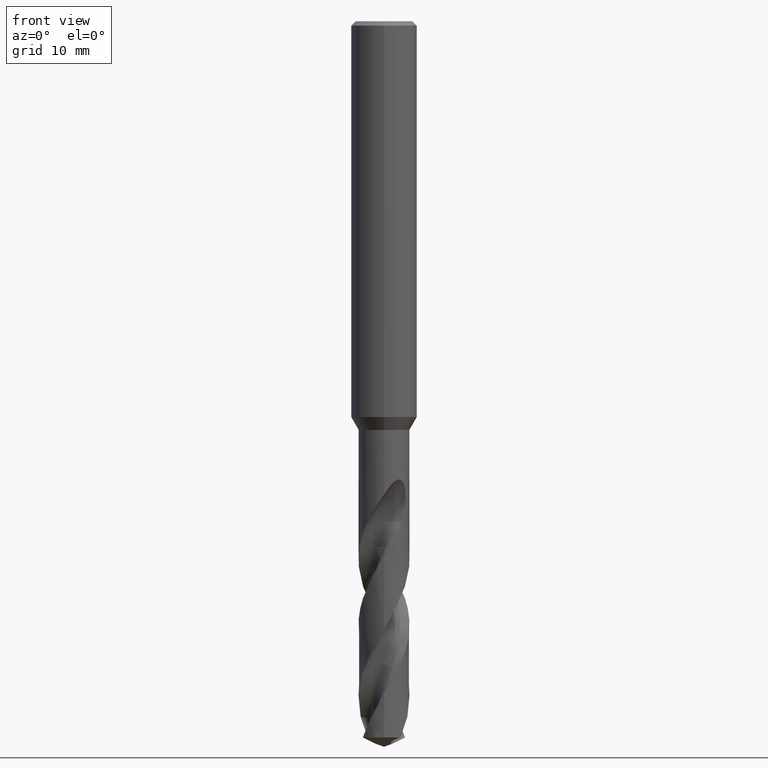
[diagram: clean part render]
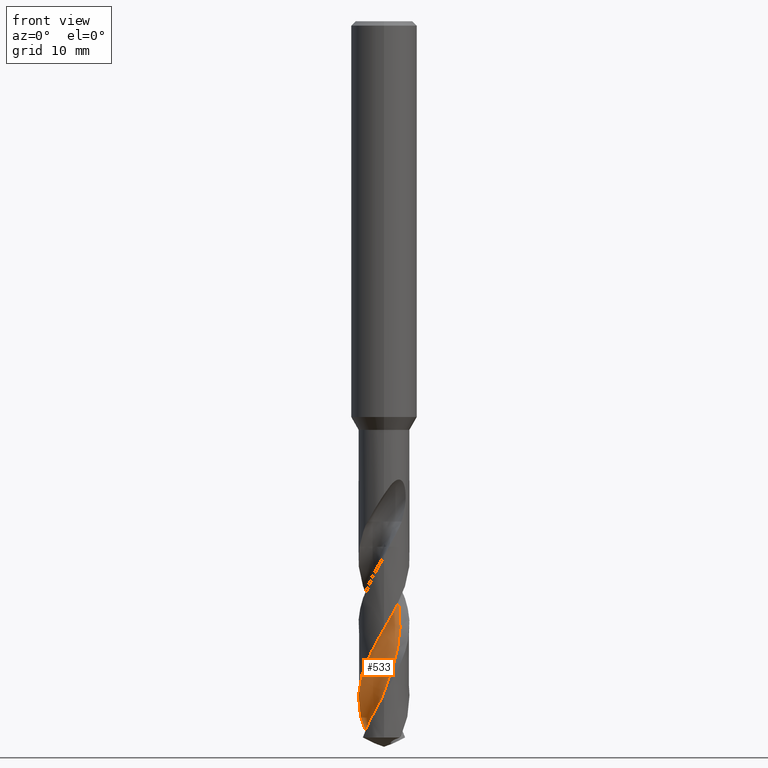
[diagram: same view with one face highlighted and labeled with its STEP entity id]
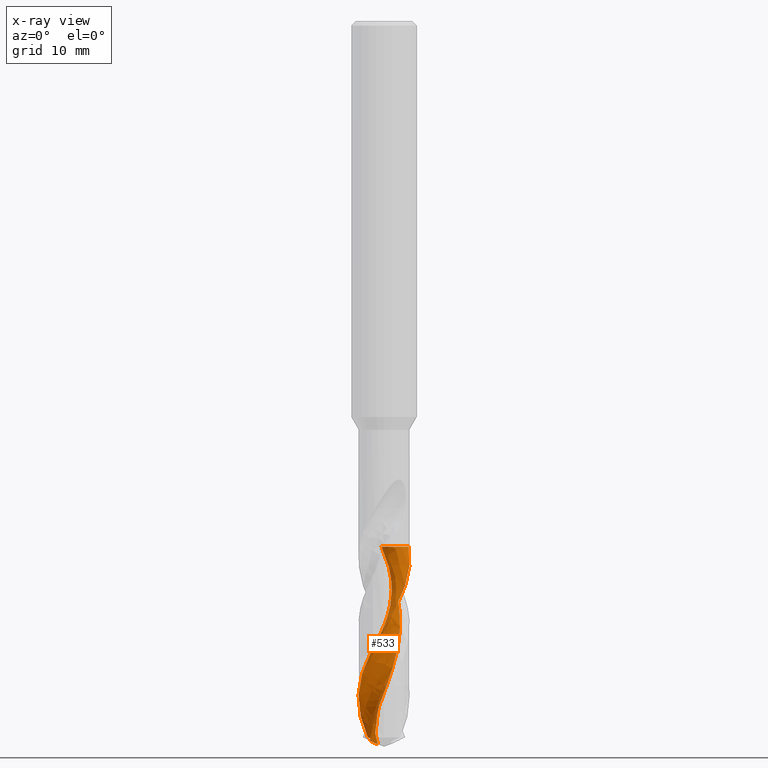
[diagram: x-ray of the same camera — body ghosted, the highlighted face saturated]
A machine part, front view. The second image highlights one B-rep face of the part: STEP entity #533.
The next image is the same camera in x-ray: the body ghosted, the highlighted face saturated — about 0% of this face is hidden behind the body in this view.
In plain terms, the highlighted face is a freeform B-spline surface patch.
Its self-contained STEP definition (entity closure, byte-faithful):
#291=EDGE_CURVE('',#693,#585,#815,.T.);
#301=EDGE_CURVE('',#605,#693,#825,.T.);
#305=EDGE_CURVE('',#585,#561,#829,.T.);
#325=EDGE_CURVE('',#561,#701,#849,.T.);
#379=EDGE_CURVE('',#701,#605,#912,.T.);
#533=ADVANCED_FACE('',(#1083),#1084,.F.);
#561=VERTEX_POINT('',#1113);
#585=VERTEX_POINT('',#1138);
#605=VERTEX_POINT('',#1158);
#693=VERTEX_POINT('',#1258);
#701=VERTEX_POINT('',#1266);
#815=B_SPLINE_CURVE_WITH_KNOTS('',3,(#1538,#1539,#1540,#1541,#1542,#1543,#1544,#1545,#1546,#1547,#1548,#1549,#1550,#1551,#1552,#1553,#1554,#1555,#1556,#1557),.UNSPECIFIED.,.F.,.F.,(4,2,2,2,2,2,2,2,2,4),(-4.88264114901719,-4.55959838827758,-4.23648554877497,-3.63066008915685,-3.02491475168122,-2.41953797536247,-1.81460369159145,-1.20992510826705,-0.605158652989508,-0.0),.UNSPECIFIED.);
#825=B_SPLINE_CURVE_WITH_KNOTS('',3,(#1577,#1578,#1579,#1580,#1581,#1582,#1583,#1584,#1585,#1586,#1587,#1588,#1589,#1590,#1591,#1592,#1593,#1594,#1595,#1596,#1597,#1598,#1599,#1600,#1601,#1602,#1603,#1604,#1605,#1606,#1607,#1608,#1609,#1610,#1611,#1612,#1613,#1614,#1615,#1616,#1617,#1618,#1619,#1620,#1621,#1622,#1623,#1624,#1625,#1626,#1627,#1628,#1629,#1630,#1631,#1632,#1633,#1634,#1635,#1636,#1637,#1638,#1639,#1640),.UNSPECIFIED.,.F.,.F.,(4,2,2,2,2,2,2,2,2,2,2,2,2,2,2,2,2,2,2,2,2,2,2,2,2,2,2,2,2,2,2,4),(0.0,0.808541596520075,1.56886892178229,2.47241410607191,3.37621867843261,3.59006172903971,4.3307048378264,4.70185289238523,5.44039208748053,6.18239420353827,6.92051241758177,7.66213026612776,8.39996494035793,9.30255510691836,9.52748558335662,10.2670687260501,10.637595799496,11.0068633195403,11.7475230777491,12.1186346197132,12.8570744648049,13.5990010648063,14.3371004621232,15.0786987394277,15.7042086871945,16.8040729961244,16.8553911488467,17.6656740598387,18.2738454392001,18.3307607534368,19.2141209936666,20.0948020953026),.UNSPECIFIED.);
#829=B_SPLINE_CURVE_WITH_KNOTS('',3,(#1645,#1646,#1647,#1648,#1649,#1650,#1651,#1652,#1653,#1654,#1655,#1656,#1657,#1658,#1659,#1660,#1661,#1662,#1663,#1664,#1665,#1666,#1667,#1668,#1669,#1670,#1671,#1672,#1673,#1674,#1675,#1676,#1677,#1678,#1679,#1680,#1681,#1682,#1683),.UNSPECIFIED.,.F.,.F.,(4,1,2,2,2,2,2,2,2,2,2,2,2,2,2,2,2,2,2,4),(0.0,0.411633637960751,0.823267275921502,1.646534551843,2.46980182776451,3.29306910368601,4.93960365552901,6.58613820737202,8.23267275921502,9.87920731105803,11.525741862901,13.172276414744,14.818810966587,16.46534551843,18.111880070273,19.7584146221161,21.4049491739591,23.0514837258021,24.6980182776451,26.3445528294881),.UNSPECIFIED.);
#849=B_SPLINE_CURVE_WITH_KNOTS('',3,(#1734,#1735,#1736,#1737,#1738,#1739,#1740,#1741,#1742,#1743,#1744,#1745,#1746,#1747,#1748,#1749,#1750,#1751,#1752,#1753),.UNSPECIFIED.,.F.,.F.,(4,2,2,2,2,2,2,2,2,4),(0.0,0.96909605989379,1.62739893184847,2.25232696858184,2.95319840639332,3.71478541063985,4.57621962632589,5.53946983386831,6.11781502484832,6.69595990678911),.UNSPECIFIED.);
#912=B_SPLINE_CURVE_WITH_KNOTS('',3,(#2452,#2453,#2454,#2455,#2456,#2457,#2458,#2459,#2460,#2461,#2462,#2463,#2464,#2465,#2466,#2467,#2468,#2469,#2470,#2471,#2472,#2473,#2474,#2475,#2476,#2477,#2478,#2479,#2480,#2481,#2482,#2483,#2484,#2485,#2486,#2487,#2488,#2489,#2490,#2491,#2492,#2493,#2494,#2495,#2496,#2497,#2498,#2499,#2500,#2501,#2502,#2503,#2504,#2505,#2506,#2507,#2508,#2509,#2510,#2511,#2512,#2513,#2514,#2515),.UNSPECIFIED.,.F.,.F.,(4,2,2,2,2,2,2,2,2,2,2,2,2,2,2,2,2,2,2,2,2,2,2,2,2,2,2,2,2,2,2,4),(0.0,0.808541596520075,1.56886892178229,2.47241410607191,3.37621867843261,3.59006172903971,4.3307048378264,4.70185289238523,5.44039208748053,6.18239420353827,6.92051241758177,7.66213026612776,8.39996494035793,9.30255510691836,9.52748558335662,10.2670687260501,10.637595799496,11.0068633195403,11.7475230777491,12.1186346197132,12.8570744648049,13.5990010648063,14.3371004621232,15.0786987394277,15.7042086871945,16.8040729961244,16.8553911488467,17.6656740598387,18.2738454392001,18.3307607534368,19.2141209936666,20.0948020953026),.UNSPECIFIED.);
#1083=FACE_OUTER_BOUND('',#4321,.T.);
#1084=B_SPLINE_SURFACE_WITH_KNOTS('',3,3,((#4322,#4323,#4324,#4325,#4326,#4327,#4328,#4329,#4330,#4331,#4332,#4333,#4334,#4335,#4336,#4337,#4338,#4339,#4340,#4341,#4342,#4343,#4344,#4345,#4346,#4347,#4348,#4349,#4350,#4351,#4352,#4353,#4354,#4355,#4356,#4357,#4358,#4359,#4360),(#4361,#4362,#4363,#4364,#4365,#4366,#4367,#4368,#4369,#4370,#4371,#4372,#4373,#4374,#4375,#4376,#4377,#4378,#4379,#4380,#4381,#4382,#4383,#4384,#4385,#4386,#4387,#4388,#4389,#4390,#4391,#4392,#4393,#4394,#4395,#4396,#4397,#4398,#4399),(#4400,#4401,#4402,#4403,#4404,#4405,#4406,#4407,#4408,#4409,#4410,#4411,#4412,#4413,#4414,#4415,#4416,#4417,#4418,#4419,#4420,#4421,#4422,#4423,#4424,#4425,#4426,#4427,#4428,#4429,#4430,#4431,#4432,#4433,#4434,#4435,#4436,#4437,#4438),(#4439,#4440,#4441,#4442,#4443,#4444,#4445,#4446,#4447,#4448,#4449,#4450,#4451,#4452,#4453,#4454,#4455,#4456,#4457,#4458,#4459,#4460,#4461,#4462,#4463,#4464,#4465,#4466,#4467,#4468,#4469,#4470,#4471,#4472,#4473,#4474,#4475,#4476,#4477),(#4478,#4479,#4480,#4481,#4482,#4483,#4484,#4485,#4486,#4487,#4488,#4489,#4490,#4491,#4492,#4493,#4494,#4495,#4496,#4497,#4498,#4499,#4500,#4501,#4502,#4503,#4504,#4505,#4506,#4507,#4508,#4509,#4510,#4511,#4512,#4513,#4514,#4515,#4516),(#4517,#4518,#4519,#4520,#4521,#4522,#4523,#4524,#4525,#4526,#4527,#4528,#4529,#4530,#4531,#4532,#4533,#4534,#4535,#4536,#4537,#4538,#4539,#4540,#4541,#4542,#4543,#4544,#4545,#4546,#4547,#4548,#4549,#4550,#4551,#4552,#4553,#4554,#4555),(#4556,#4557,#4558,#4559,#4560,#4561,#4562,#4563,#4564,#4565,#4566,#4567,#4568,#4569,#4570,#4571,#4572,#4573,#4574,#4575,#4576,#4577,#4578,#4579,#4580,#4581,#4582,#4583,#4584,#4585,#4586,#4587,#4588,#4589,#4590,#4591,#4592,#4593,#4594),(#4595,#4596,#4597,#4598,#4599,#4600,#4601,#4602,#4603,#4604,#4605,#4606,#4607,#4608,#4609,#4610,#4611,#4612,#4613,#4614,#4615,#4616,#4617,#4618,#4619,#4620,#4621,#4622,#4623,#4624,#4625,#4626,#4627,#4628,#4629,#4630,#4631,#4632,#4633),(#4634,#4635,#4636,#4637,#4638,#4639,#4640,#4641,#4642,#4643,#4644,#4645,#4646,#4647,#4648,#4649,#4650,#4651,#4652,#4653,#4654,#4655,#4656,#4657,#4658,#4659,#4660,#4661,#4662,#4663,#4664,#4665,#4666,#4667,#4668,#4669,#4670,#4671,#4672),(#4673,#4674,#4675,#4676,#4677,#4678,#4679,#4680,#4681,#4682,#4683,#4684,#4685,#4686,#4687,#4688,#4689,#4690,#4691,#4692,#4693,#4694,#4695,#4696,#4697,#4698,#4699,#4700,#4701,#4702,#4703,#4704,#4705,#4706,#4707,#4708,#4709,#4710,#4711),(#4712,#4713,#4714,#4715,#4716,#4717,#4718,#4719,#4720,#4721,#4722,#4723,#4724,#4725,#4726,#4727,#4728,#4729,#4730,#4731,#4732,#4733,#4734,#4735,#4736,#4737,#4738,#4739,#4740,#4741,#4742,#4743,#4744,#4745,#4746,#4747,#4748,#4749,#4750)),.UNSPECIFIED.,.F.,.F.,.F.,(4,1,1,1,1,1,1,1,4),(4,1,2,2,2,2,2,2,2,2,2,2,2,2,2,2,2,2,2,4),(-2.81689488476775E-016,0.392701921508012,0.785403843016025,1.17810576452404,1.57080768603205,1.96350960754006,2.35621152904808,2.74891345055609,3.1416153720641),(0.0,0.411633637960751,0.823267275921502,1.646534551843,2.46980182776451,3.29306910368601,4.93960365552901,6.58613820737202,8.23267275921502,9.87920731105803,11.525741862901,13.172276414744,14.818810966587,16.46534551843,18.111880070273,19.7584146221161,21.4049491739591,23.0514837258021,24.6980182776451,26.3445528294881),.UNSPECIFIED.);
#1113=CARTESIAN_POINT('',(-1.2999692469547,-0.673686438717716,-65.4670882287334));
#1138=CARTESIAN_POINT('',(-0.230845530398882,1.44220915875237,-47.805));
#1158=CARTESIAN_POINT('',(5.25448866002947E-014,-2.32494304511545,-55.2699499887992));
#1258=CARTESIAN_POINT('',(2.23044035875391,0.655969479324048,-47.805));
#1266=CARTESIAN_POINT('',(-1.46748765690234,1.80335935876333,-65.1537692053311));
#1538=CARTESIAN_POINT('',(2.75115938530533,2.28587107277212,-47.805));
#1539=CARTESIAN_POINT('',(2.78043537192102,2.18224536603221,-47.805));
#1540=CARTESIAN_POINT('',(2.79882771384055,2.07584917161764,-47.805));
#1541=CARTESIAN_POINT('',(2.81325950059113,1.86094586155823,-47.805));
#1542=CARTESIAN_POINT('',(2.80925492412446,1.75302194078445,-47.805));
#1543=CARTESIAN_POINT('',(2.76568024021949,1.44645356795393,-47.805));
#1544=CARTESIAN_POINT('',(2.69847290728283,1.25397675694432,-47.805));
#1545=CARTESIAN_POINT('',(2.49409366902306,0.905644968454885,-47.805));
#1546=CARTESIAN_POINT('',(2.35887667676394,0.753101215984304,-47.805));
#1547=CARTESIAN_POINT('',(2.03769427232368,0.508507824138676,-47.805));
#1548=CARTESIAN_POINT('',(1.85481795910831,0.418750562785503,-47.805));
#1549=CARTESIAN_POINT('',(1.46510085910609,0.314427940985438,-47.805));
#1550=CARTESIAN_POINT('',(1.26199854389403,0.300804216561017,-47.805));
#1551=CARTESIAN_POINT('',(0.862082598098276,0.35217164369457,-47.805));
#1552=CARTESIAN_POINT('',(0.669097929448481,0.416637971811897,-47.805));
#1553=CARTESIAN_POINT('',(0.318666641482951,0.615942710082844,-47.805));
#1554=CARTESIAN_POINT('',(0.16459060930016,0.748877445010612,-47.805));
#1555=CARTESIAN_POINT('',(-0.0840219846058257,1.06644042804338,-47.805));
#1556=CARTESIAN_POINT('',(-0.176132164200963,1.24805142696319,-47.805));
#1557=CARTESIAN_POINT('',(-0.230845530398915,1.44220915875238,-47.805));
#1577=CARTESIAN_POINT('',(-1.46748765690233,1.80335935876333,-65.1537692053311));
#1578=CARTESIAN_POINT('',(-1.57251612922755,1.71789047645983,-64.9207417094016));
#1579=CARTESIAN_POINT('',(-1.66930136928392,1.62389223832936,-64.6858840930717));
#1580=CARTESIAN_POINT('',(-1.83968631801692,1.4272542682019,-64.2344185765861));
#1581=CARTESIAN_POINT('',(-1.91449801829693,1.32525333638297,-64.0168321472178));
#1582=CARTESIAN_POINT('',(-2.0594661436123,1.08939554273731,-63.5386604553323));
#1583=CARTESIAN_POINT('',(-2.12559990976676,0.953959236644399,-63.2784741653043));
#1584=CARTESIAN_POINT('',(-2.2308377987008,0.671993304153154,-62.7591079968222));
#1585=CARTESIAN_POINT('',(-2.26956001599238,0.526448933389975,-62.5010298576666));
#1586=CARTESIAN_POINT('',(-2.2997502805384,0.343443401717785,-62.1795145932677));
#1587=CARTESIAN_POINT('',(-2.30471967571701,0.308337772876665,-62.1179404638687));
#1588=CARTESIAN_POINT('',(-2.32333630799629,0.150914148504434,-61.8432121328714));
#1589=CARTESIAN_POINT('',(-2.32808810343583,0.0276245220852525,-61.6310672688445));
#1590=CARTESIAN_POINT('',(-2.32046436627684,-0.157451138574802,-61.3114627210827));
#1591=CARTESIAN_POINT('',(-2.31545759975823,-0.219057939019962,-61.2048712680784));
#1592=CARTESIAN_POINT('',(-2.29319979623038,-0.40228816327502,-60.885696199643));
#1593=CARTESIAN_POINT('',(-2.2687369433476,-0.522950150261766,-60.6725513293507));
#1594=CARTESIAN_POINT('',(-2.20070654114621,-0.760043281781441,-60.246634851962));
#1595=CARTESIAN_POINT('',(-2.15720829594528,-0.875890708871435,-60.0341328684642));
#1596=CARTESIAN_POINT('',(-2.05258041495141,-1.09885177451055,-59.6082010403519));
#1597=CARTESIAN_POINT('',(-1.99164403963132,-1.20580220237305,-59.395042648164));
#1598=CARTESIAN_POINT('',(-1.85294342547081,-1.4097297733114,-58.9691409641916));
#1599=CARTESIAN_POINT('',(-1.77542413975822,-1.50617643167692,-58.7566490643719));
#1600=CARTESIAN_POINT('',(-1.60634440092023,-1.6852861580678,-58.3307123929382));
#1601=CARTESIAN_POINT('',(-1.51502912264066,-1.76784027358216,-58.1175446249648));
#1602=CARTESIAN_POINT('',(-1.29821832232478,-1.93460676214408,-57.6451849586528));
#1603=CARTESIAN_POINT('',(-1.17044324987438,-2.01445137472454,-57.3869957664517));
#1604=CARTESIAN_POINT('',(-1.00256544747562,-2.09801577627761,-57.0620863191314));
#1605=CARTESIAN_POINT('',(-0.968713078057864,-2.11385955399637,-56.9972040991186));
#1606=CARTESIAN_POINT('',(-0.821755781841818,-2.17836196512269,-56.7191708095342));
#1607=CARTESIAN_POINT('',(-0.705169493960676,-2.21886485073291,-56.5069961876753));
#1608=CARTESIAN_POINT('',(-0.525895021450875,-2.26553356122608,-56.1873598660653));
#1609=CARTESIAN_POINT('',(-0.465513067498425,-2.27870336693119,-56.0807718259335));
#1610=CARTESIAN_POINT('',(-0.344161027293325,-2.30015501015214,-55.8676347281152));
#1611=CARTESIAN_POINT('',(-0.283269963608275,-2.30843979206733,-55.7610143328281));
#1612=CARTESIAN_POINT('',(-0.0997352854975702,-2.32606011558291,-55.4415467393586));
#1613=CARTESIAN_POINT('',(0.0236497712228984,-2.32809550028883,-55.2293838523471));
#1614=CARTESIAN_POINT('',(0.208518329687797,-2.31639675587492,-54.9097649998825));
#1615=CARTESIAN_POINT('',(0.2699951722509,-2.31003475273794,-54.8031752786136));
#1616=CARTESIAN_POINT('',(0.452667429144111,-2.28375075472343,-54.4840133243722));
#1617=CARTESIAN_POINT('',(0.572749384183454,-2.25664100314174,-54.2708638733149));
#1618=CARTESIAN_POINT('',(0.808274913207125,-2.18341338560123,-53.844957002875));
#1619=CARTESIAN_POINT('',(0.92313633758544,-2.13737704510359,-53.6324616662462));
#1620=CARTESIAN_POINT('',(1.14375413585475,-2.02786082320189,-53.2065261059704));
#1621=CARTESIAN_POINT('',(1.24934218757379,-1.96458081834475,-52.9933709067636));
#1622=CARTESIAN_POINT('',(1.45016806870796,-1.82142215891544,-52.5674531250199));
#1623=CARTESIAN_POINT('',(1.54488280502291,-1.74179873790128,-52.3549456413154));
#1624=CARTESIAN_POINT('',(1.70690970341345,-1.58195308017944,-51.9613210465446));
#1625=CARTESIAN_POINT('',(1.77603657373916,-1.5039362466916,-51.7805916388962));
#1626=CARTESIAN_POINT('',(1.95181012534854,-1.2764318100676,-51.2837407290235));
#1627=CARTESIAN_POINT('',(2.04614945541718,-1.11888012186507,-50.9701918806717));
#1628=CARTESIAN_POINT('',(2.12446292554074,-0.944439516494389,-50.6384138561388));
#1629=CARTESIAN_POINT('',(2.12791211506552,-0.93664229222161,-50.6236165246209));
#1630=CARTESIAN_POINT('',(2.18525249215238,-0.805059835192244,-50.3746345905088));
#1631=CARTESIAN_POINT('',(2.22839631266774,-0.676633393262959,-50.1417007493294));
#1632=CARTESIAN_POINT('',(2.28398866011343,-0.446038977397762,-49.7324140881135));
#1633=CARTESIAN_POINT('',(2.30127505677463,-0.345862458165014,-49.5573797523943));
#1634=CARTESIAN_POINT('',(2.31296038544647,-0.235597631162902,-49.3652773706239));
#1635=CARTESIAN_POINT('',(2.31390175589023,-0.226164602667413,-49.3488461855936));
#1636=CARTESIAN_POINT('',(2.32852944617885,-0.0698991265971111,-49.0769860533095));
#1637=CARTESIAN_POINT('',(2.32828589545544,0.0779722056170364,-48.823677366018));
#1638=CARTESIAN_POINT('',(2.29974920550204,0.37148719343023,-48.3140897208619));
#1639=CARTESIAN_POINT('',(2.27175194670316,0.515521445379526,-48.057777037084));
#1640=CARTESIAN_POINT('',(2.23042103564849,0.656035170200249,-47.8048817671159));
#1645=CARTESIAN_POINT('',(-1.09601551076844,1.15148448923156,-45.5204));
#1646=CARTESIAN_POINT('',(-1.00652713806493,1.14491619362961,-45.6269201435477));
#1647=CARTESIAN_POINT('',(-0.860799324938944,1.14909834765723,-45.8395320729354));
#1648=CARTESIAN_POINT('',(-0.781621206747741,1.1839959618964,-46.0518563314211));
#1649=CARTESIAN_POINT('',(-0.708056065473124,1.2631995306947,-46.3722043957483));
#1650=CARTESIAN_POINT('',(-0.64987123796218,1.30868616407945,-46.5861357149148));
#1651=CARTESIAN_POINT('',(-0.520620963347726,1.38288329240125,-47.0141097129558));
#1652=CARTESIAN_POINT('',(-0.445343976448443,1.40750941723005,-47.2278635276875));
#1653=CARTESIAN_POINT('',(-0.285547276466346,1.43449673136064,-47.6532560458688));
#1654=CARTESIAN_POINT('',(-0.208025497304512,1.44600802281481,-47.8661902738314));
#1655=CARTESIAN_POINT('',(0.0194490299316405,1.47559577111772,-48.5071428278766));
#1656=CARTESIAN_POINT('',(0.178454129492828,1.46113154637415,-48.9342841666653));
#1657=CARTESIAN_POINT('',(0.48105727972385,1.39342157843101,-49.7874135560078));
#1658=CARTESIAN_POINT('',(0.626929471073083,1.32990132805123,-50.2140845198377));
#1659=CARTESIAN_POINT('',(0.893264079730083,1.17304080026876,-51.0677902599459));
#1660=CARTESIAN_POINT('',(1.01198587330949,1.06680120530792,-51.4946002834166));
#1661=CARTESIAN_POINT('',(1.21573257590154,0.834191578154951,-52.3481308612289));
#1662=CARTESIAN_POINT('',(1.29524922056662,0.696217023013506,-52.7749084716054));
#1663=CARTESIAN_POINT('',(1.41583787241679,0.411463654104958,-53.6284787836336));
#1664=CARTESIAN_POINT('',(1.44809932581762,0.255493943980177,-54.055263632545));
#1665=CARTESIAN_POINT('',(1.47342006971595,-0.0527152304401722,-54.9088315634471));
#1666=CARTESIAN_POINT('',(1.45523198308297,-0.210930275759072,-55.3356119966984));
#1667=CARTESIAN_POINT('',(1.38286411169977,-0.511540147972992,-56.189177618835));
#1668=CARTESIAN_POINT('',(1.31602456243524,-0.656105343448493,-56.6159630059776));
#1669=CARTESIAN_POINT('',(1.15300179049399,-0.918902435758035,-57.4695251137324));
#1670=CARTESIAN_POINT('',(1.04425093487653,-1.03525259654291,-57.8963066779875));
#1671=CARTESIAN_POINT('',(0.807193484603344,-1.23380601927176,-58.7498791595592));
#1672=CARTESIAN_POINT('',(0.667471585760935,-1.31024505866779,-59.1766611841859));
#1673=CARTESIAN_POINT('',(0.380174709869328,-1.42457706234378,-60.030217352112));
#1674=CARTESIAN_POINT('',(0.223546078594824,-1.45341592022924,-60.4570041479321));
#1675=CARTESIAN_POINT('',(-0.0851783008606151,-1.47188452094248,-61.3105910706908));
#1676=CARTESIAN_POINT('',(-0.242962022024807,-1.45018043662052,-61.7373635726802));
#1677=CARTESIAN_POINT('',(-0.541853947590716,-1.37140236819533,-62.5908670728671));
#1678=CARTESIAN_POINT('',(-0.684933024937033,-1.3013666288252,-63.0176836398972));
#1679=CARTESIAN_POINT('',(-0.943959223070088,-1.13154245117511,-63.871391072733));
#1680=CARTESIAN_POINT('',(-1.05787832904852,-1.02072620326348,-64.2980363646142));
#1681=CARTESIAN_POINT('',(-1.25324757582194,-0.78389586910304,-65.1510090452213));
#1682=CARTESIAN_POINT('',(-1.32507125924786,-0.639531736142975,-65.5778731097533));
#1683=CARTESIAN_POINT('',(-1.37255895976914,-0.488196760660377,-66.0042371090344));
#1734=CARTESIAN_POINT('',(-1.29996924695476,-0.673686438716419,-65.4670882287352));
#1735=CARTESIAN_POINT('',(-1.07110289670797,-0.472716699206899,-65.5747034853144));
#1736=CARTESIAN_POINT('',(-0.89717370052863,-0.240510631942297,-65.6701950825557));
#1737=CARTESIAN_POINT('',(-0.702732909756956,0.110491855265511,-65.746053164563));
#1738=CARTESIAN_POINT('',(-0.650267227597351,0.240111243862994,-65.7519571260036));
#1739=CARTESIAN_POINT('',(-0.586567897542878,0.489820908527464,-65.7253277889155));
#1740=CARTESIAN_POINT('',(-0.57433665896858,0.611262217075901,-65.6957468652958));
#1741=CARTESIAN_POINT('',(-0.590879784890771,0.866298405327046,-65.619365504477));
#1742=CARTESIAN_POINT('',(-0.625043547708184,1.00468583078975,-65.5693652092879));
#1743=CARTESIAN_POINT('',(-0.760311593766678,1.28609176926225,-65.4562497422634));
#1744=CARTESIAN_POINT('',(-0.860991510851672,1.41608980321568,-65.3970081813273));
#1745=CARTESIAN_POINT('',(-1.12187977998668,1.64735683980982,-65.2748021176191));
#1746=CARTESIAN_POINT('',(-1.28568650444902,1.74055483641515,-65.2132265362863));
#1747=CARTESIAN_POINT('',(-1.6615821310621,1.87042576860209,-65.0902880898584));
#1748=CARTESIAN_POINT('',(-1.8740556762758,1.89816782342461,-65.0307068313972));
#1749=CARTESIAN_POINT('',(-2.21485793586621,1.87928899690793,-64.9432919140014));
#1750=CARTESIAN_POINT('',(-2.34218336076333,1.85799910791118,-64.9124887943087));
#1751=CARTESIAN_POINT('',(-2.5906632132304,1.78854405968307,-64.8547903257863));
#1752=CARTESIAN_POINT('',(-2.71141171967519,1.74050365688745,-64.8279893427766));
#1753=CARTESIAN_POINT('',(-2.82636824390227,1.68014658582541,-64.8032489332815));
#2452=CARTESIAN_POINT('',(-1.46748765690233,1.80335935876333,-65.1537692053311));
#2453=CARTESIAN_POINT('',(-1.57251612922755,1.71789047645983,-64.9207417094016));
#2454=CARTESIAN_POINT('',(-1.66930136928392,1.62389223832936,-64.6858840930717));
#2455=CARTESIAN_POINT('',(-1.83968631801692,1.4272542682019,-64.2344185765861));
#2456=CARTESIAN_POINT('',(-1.91449801829693,1.32525333638297,-64.0168321472178));
#2457=CARTESIAN_POINT('',(-2.0594661436123,1.08939554273731,-63.5386604553323));
#2458=CARTESIAN_POINT('',(-2.12559990976676,0.953959236644399,-63.2784741653043));
#2459=CARTESIAN_POINT('',(-2.2308377987008,0.671993304153154,-62.7591079968222));
#2460=CARTESIAN_POINT('',(-2.26956001599238,0.526448933389975,-62.5010298576666));
#2461=CARTESIAN_POINT('',(-2.2997502805384,0.343443401717785,-62.1795145932677));
#2462=CARTESIAN_POINT('',(-2.30471967571701,0.308337772876665,-62.1179404638687));
#2463=CARTESIAN_POINT('',(-2.32333630799629,0.150914148504434,-61.8432121328714));
#2464=CARTESIAN_POINT('',(-2.32808810343583,0.0276245220852525,-61.6310672688445));
#2465=CARTESIAN_POINT('',(-2.32046436627684,-0.157451138574802,-61.3114627210827));
#2466=CARTESIAN_POINT('',(-2.31545759975823,-0.219057939019962,-61.2048712680784));
#2467=CARTESIAN_POINT('',(-2.29319979623038,-0.40228816327502,-60.885696199643));
#2468=CARTESIAN_POINT('',(-2.2687369433476,-0.522950150261766,-60.6725513293507));
#2469=CARTESIAN_POINT('',(-2.20070654114621,-0.760043281781441,-60.246634851962));
#2470=CARTESIAN_POINT('',(-2.15720829594528,-0.875890708871435,-60.0341328684642));
#2471=CARTESIAN_POINT('',(-2.05258041495141,-1.09885177451055,-59.6082010403519));
#2472=CARTESIAN_POINT('',(-1.99164403963132,-1.20580220237305,-59.395042648164));
#2473=CARTESIAN_POINT('',(-1.85294342547081,-1.4097297733114,-58.9691409641916));
#2474=CARTESIAN_POINT('',(-1.77542413975822,-1.50617643167692,-58.7566490643719));
#2475=CARTESIAN_POINT('',(-1.60634440092023,-1.6852861580678,-58.3307123929382));
#2476=CARTESIAN_POINT('',(-1.51502912264066,-1.76784027358216,-58.1175446249648));
#2477=CARTESIAN_POINT('',(-1.29821832232478,-1.93460676214408,-57.6451849586528));
#2478=CARTESIAN_POINT('',(-1.17044324987438,-2.01445137472454,-57.3869957664517));
#2479=CARTESIAN_POINT('',(-1.00256544747562,-2.09801577627761,-57.0620863191314));
#2480=CARTESIAN_POINT('',(-0.968713078057864,-2.11385955399637,-56.9972040991186));
#2481=CARTESIAN_POINT('',(-0.821755781841818,-2.17836196512269,-56.7191708095342));
#2482=CARTESIAN_POINT('',(-0.705169493960676,-2.21886485073291,-56.5069961876753));
#2483=CARTESIAN_POINT('',(-0.525895021450875,-2.26553356122608,-56.1873598660653));
#2484=CARTESIAN_POINT('',(-0.465513067498425,-2.27870336693119,-56.0807718259335));
#2485=CARTESIAN_POINT('',(-0.344161027293325,-2.30015501015214,-55.8676347281152));
#2486=CARTESIAN_POINT('',(-0.283269963608275,-2.30843979206733,-55.7610143328281));
#2487=CARTESIAN_POINT('',(-0.0997352854975702,-2.32606011558291,-55.4415467393586));
#2488=CARTESIAN_POINT('',(0.0236497712228984,-2.32809550028883,-55.2293838523471));
#2489=CARTESIAN_POINT('',(0.208518329687797,-2.31639675587492,-54.9097649998825));
#2490=CARTESIAN_POINT('',(0.2699951722509,-2.31003475273794,-54.8031752786136));
#2491=CARTESIAN_POINT('',(0.452667429144111,-2.28375075472343,-54.4840133243722));
#2492=CARTESIAN_POINT('',(0.572749384183454,-2.25664100314174,-54.2708638733149));
#2493=CARTESIAN_POINT('',(0.808274913207125,-2.18341338560123,-53.844957002875));
#2494=CARTESIAN_POINT('',(0.92313633758544,-2.13737704510359,-53.6324616662462));
#2495=CARTESIAN_POINT('',(1.14375413585475,-2.02786082320189,-53.2065261059704));
#2496=CARTESIAN_POINT('',(1.24934218757379,-1.96458081834475,-52.9933709067636));
#2497=CARTESIAN_POINT('',(1.45016806870796,-1.82142215891544,-52.5674531250199));
#2498=CARTESIAN_POINT('',(1.54488280502291,-1.74179873790128,-52.3549456413154));
#2499=CARTESIAN_POINT('',(1.70690970341345,-1.58195308017944,-51.9613210465446));
#2500=CARTESIAN_POINT('',(1.77603657373916,-1.5039362466916,-51.7805916388962));
#2501=CARTESIAN_POINT('',(1.95181012534854,-1.2764318100676,-51.2837407290235));
#2502=CARTESIAN_POINT('',(2.04614945541718,-1.11888012186507,-50.9701918806717));
#2503=CARTESIAN_POINT('',(2.12446292554074,-0.944439516494389,-50.6384138561388));
#2504=CARTESIAN_POINT('',(2.12791211506552,-0.93664229222161,-50.6236165246209));
#2505=CARTESIAN_POINT('',(2.18525249215238,-0.805059835192244,-50.3746345905088));
#2506=CARTESIAN_POINT('',(2.22839631266774,-0.676633393262959,-50.1417007493294));
#2507=CARTESIAN_POINT('',(2.28398866011343,-0.446038977397762,-49.7324140881135));
#2508=CARTESIAN_POINT('',(2.30127505677463,-0.345862458165014,-49.5573797523943));
#2509=CARTESIAN_POINT('',(2.31296038544647,-0.235597631162902,-49.3652773706239));
#2510=CARTESIAN_POINT('',(2.31390175589023,-0.226164602667413,-49.3488461855936));
#2511=CARTESIAN_POINT('',(2.32852944617885,-0.0698991265971111,-49.0769860533095));
#2512=CARTESIAN_POINT('',(2.32828589545544,0.0779722056170364,-48.823677366018));
#2513=CARTESIAN_POINT('',(2.29974920550204,0.37148719343023,-48.3140897208619));
#2514=CARTESIAN_POINT('',(2.27175194670316,0.515521445379526,-48.057777037084));
#2515=CARTESIAN_POINT('',(2.23042103564849,0.656035170200249,-47.8048817671159));
#4321=EDGE_LOOP('',(#7276,#7277,#7278,#7279,#7280));
#4322=CARTESIAN_POINT('',(1.09601551076844,3.34351551076844,-45.5204));
#4323=CARTESIAN_POINT('',(1.18218199535394,3.34026909961505,-45.6270046614586));
#4324=CARTESIAN_POINT('',(1.35630449071343,3.31685562529816,-45.8411900154004));
#4325=CARTESIAN_POINT('',(1.53068819849708,3.25090003927204,-46.0560612538719));
#4326=CARTESIAN_POINT('',(1.78614717302716,3.11372270854924,-46.3760878517555));
#4327=CARTESIAN_POINT('',(1.9481127388346,3.00917420848248,-46.5887634407231));
#4328=CARTESIAN_POINT('',(2.25363792792421,2.77739113403233,-47.0141328279061));
#4329=CARTESIAN_POINT('',(2.39777042247122,2.65282857189469,-47.2271493885842));
#4330=CARTESIAN_POINT('',(2.66777102367644,2.3894879170763,-47.6555084616628));
#4331=CARTESIAN_POINT('',(2.79178192567285,2.2457153229699,-47.8694034192615));
#4332=CARTESIAN_POINT('',(3.12274084937149,1.78065657151456,-48.5086963902042));
#4333=CARTESIAN_POINT('',(3.29598609505227,1.4380101475101,-48.9350845663195));
#4334=CARTESIAN_POINT('',(3.52344423264109,0.712701719128875,-49.7891422146754));
#4335=CARTESIAN_POINT('',(3.5811544720166,0.333474009523028,-50.2160486335497));
#4336=CARTESIAN_POINT('',(3.56936437055612,-0.426571927371478,-51.0694569298696));
#4337=CARTESIAN_POINT('',(3.5053826926899,-0.80489237473871,-51.4962099349978));
#4338=CARTESIAN_POINT('',(3.25616577266021,-1.52310698274618,-52.3498153860757));
#4339=CARTESIAN_POINT('',(3.07686887127034,-1.86230997151375,-52.7766040804696));
#4340=CARTESIAN_POINT('',(2.61527727535335,-2.46630179003237,-53.6301647524434));
#4341=CARTESIAN_POINT('',(2.33878397316548,-2.73229821875272,-54.0569455042885));
#4342=CARTESIAN_POINT('',(1.71125522792415,-3.16135085445575,-54.9105089280426));
#4343=CARTESIAN_POINT('',(1.3653540255074,-3.32736987818672,-55.3372945595002));
#4344=CARTESIAN_POINT('',(0.634979443399871,-3.5382383798263,-56.1908605800965));
#4345=CARTESIAN_POINT('',(0.254487459578977,-3.5875470811148,-56.6176407477914));
#4346=CARTESIAN_POINT('',(-0.505157795152661,-3.5591066494005,-57.4712105327647));
#4347=CARTESIAN_POINT('',(-0.881951207105557,-3.48678092879083,-57.8979947380052));
#4348=CARTESIAN_POINT('',(-1.59447473089394,-3.22181897614421,-58.7515535520472));
#4349=CARTESIAN_POINT('',(-1.92966130311375,-3.0351097203714,-59.1783380971187));
#4350=CARTESIAN_POINT('',(-2.5233339402971,-2.56029473302803,-60.0319129228269));
#4351=CARTESIAN_POINT('',(-2.78315752661473,-2.27799623446886,-60.4586890661814));
#4352=CARTESIAN_POINT('',(-3.19829568205524,-1.64117541554091,-61.3122392665514));
#4353=CARTESIAN_POINT('',(-3.35667823315833,-1.29169528754587,-61.7390441902338));
#4354=CARTESIAN_POINT('',(-3.55130330021103,-0.556834869374988,-62.5926532007262));
#4355=CARTESIAN_POINT('',(-3.59217299630108,-0.175431540916317,-63.0193616797764));
#4356=CARTESIAN_POINT('',(-3.54759705307318,0.583335100552727,-63.8727789616217));
#4357=CARTESIAN_POINT('',(-3.46700633187062,0.958776145140679,-64.2997621727014));
#4358=CARTESIAN_POINT('',(-3.18366652151036,1.66472965442718,-65.1532614918981));
#4359=CARTESIAN_POINT('',(-2.99051236531085,1.99450019159664,-65.5791780544104));
#4360=CARTESIAN_POINT('',(-2.75222700675357,2.28786402211653,-66.0058524165058));
#4361=CARTESIAN_POINT('',(1.23947909921428,3.20004083480926,-45.5204));
#4362=CARTESIAN_POINT('',(1.32586301061681,3.19701183372267,-45.6270108600424));
#4363=CARTESIAN_POINT('',(1.49817932661335,3.17174000533713,-45.8413116091566));
#4364=CARTESIAN_POINT('',(1.66596154024352,3.09955317810741,-46.0563696432441));
#4365=CARTESIAN_POINT('',(1.90725788765301,2.95047145097858,-46.3763726651727));
#4366=CARTESIAN_POINT('',(2.05940354159421,2.83913097510004,-46.5889561586446));
#4367=CARTESIAN_POINT('',(2.34490193342563,2.59581149094201,-47.0141345229634));
#4368=CARTESIAN_POINT('',(2.47926980834732,2.46674268423433,-47.2270970124861));
#4369=CARTESIAN_POINT('',(2.73026796729844,2.19618985704193,-47.6556736551575));
#4370=CARTESIAN_POINT('',(2.84411520199674,2.04937491313196,-47.8696390710543));
#4371=CARTESIAN_POINT('',(3.14269929648846,1.5775443721093,-48.5088103300077));
#4372=CARTESIAN_POINT('',(3.29446489579417,1.23396673725015,-48.935143264182));
#4373=CARTESIAN_POINT('',(3.4788831432593,0.51357826111217,-49.7892689982527));
#4374=CARTESIAN_POINT('',(3.51593042993762,0.140121599349296,-50.2161926798033));
#4375=CARTESIAN_POINT('',(3.46466238687505,-0.601719463287633,-51.0695791657227));
#4376=CARTESIAN_POINT('',(3.38287339786147,-0.968081218208185,-51.4963279887973));
#4377=CARTESIAN_POINT('',(3.10187462766262,-1.65664797186741,-52.3499389275711));
#4378=CARTESIAN_POINT('',(2.90940792294705,-1.97891101412843,-52.7767284340824));
#4379=CARTESIAN_POINT('',(2.42692355222261,-2.54479814226573,-53.6302884041416));
#4380=CARTESIAN_POINT('',(2.14322975212498,-2.7905861888895,-54.0570688535937));
#4381=CARTESIAN_POINT('',(1.50779343496694,-3.17690931471785,-54.9106319455336));
#4382=CARTESIAN_POINT('',(1.16138229465478,-3.32147938455293,-55.3374179607069));
#4383=CARTESIAN_POINT('',(0.436882988090284,-3.48928137436287,-56.1909840068274));
#4384=CARTESIAN_POINT('',(0.0626263725913223,-3.51806166064833,-56.6177638070987));
#4385=CARTESIAN_POINT('',(-0.677955768941796,-3.45057284629667,-57.4713341280794));
#4386=CARTESIAN_POINT('',(-1.0423996029653,-3.36070413294175,-57.898118549824));
#4387=CARTESIAN_POINT('',(-1.72458468416816,-3.06462395846207,-58.7516763428993));
#4388=CARTESIAN_POINT('',(-2.04254761963328,-2.86512214674897,-59.1784610643798));
#4389=CARTESIAN_POINT('',(-2.59765961548214,-2.37025627371502,-60.0320372939172));
#4390=CARTESIAN_POINT('',(-2.83711890126197,-2.08120442438573,-60.4588126316948));
#4391=CARTESIAN_POINT('',(-3.20936788678358,-1.43742046280742,-61.3123601520273));
#4392=CARTESIAN_POINT('',(-3.34629738311381,-1.08790197753905,-61.7391674618491));
#4393=CARTESIAN_POINT('',(-3.49798191924302,-0.359867531955759,-62.5927841806398));
#4394=CARTESIAN_POINT('',(-3.51847277162494,0.0148453676428528,-63.0194847766724));
#4395=CARTESIAN_POINT('',(-3.43535115060533,0.753739661777377,-63.8728807203143));
#4396=CARTESIAN_POINT('',(-3.33744112544612,1.11644928794942,-64.2998887592743));
#4397=CARTESIAN_POINT('',(-3.02339825020642,1.79106990120769,-65.1534266710112));
#4398=CARTESIAN_POINT('',(-2.81810990130492,2.10349714778667,-65.5792737792182));
#4399=CARTESIAN_POINT('',(-2.57052942926729,2.37815665832038,-66.0059708833462));
#4400=CARTESIAN_POINT('',(1.46929107296693,2.85610154994976,-45.5203999999999));
#4401=CARTESIAN_POINT('',(1.55619620241596,2.85342081467083,-45.6270210546767));
#4402=CARTESIAN_POINT('',(1.72416191294563,2.82515132693821,-45.841511591682));
#4403=CARTESIAN_POINT('',(1.87626607872278,2.7431296736682,-46.0568768451736));
#4404=CARTESIAN_POINT('',(2.08450915690237,2.57587614773611,-46.3768410910344));
#4405=CARTESIAN_POINT('',(2.21431814885257,2.45485968686882,-46.5892731176952));
#4406=CARTESIAN_POINT('',(2.45518372793542,2.19643626061259,-47.0141373108623));
#4407=CARTESIAN_POINT('',(2.56823451117863,2.06223989822572,-47.2270108742573));
#4408=CARTESIAN_POINT('',(2.77836777311795,1.78482231889339,-47.6559453417932));
#4409=CARTESIAN_POINT('',(2.8706821240099,1.63596561704966,-47.8700266449534));
#4410=CARTESIAN_POINT('',(3.10183728730894,1.1634687503534,-48.5089977197383));
#4411=CARTESIAN_POINT('',(3.21028233774245,0.826570789386469,-48.9352398147882));
#4412=CARTESIAN_POINT('',(3.3105954054834,0.133135547533051,-49.7894775050822));
#4413=CARTESIAN_POINT('',(3.30862043110733,-0.220564538614995,-50.216429596304));
#4414=CARTESIAN_POINT('',(3.18565255599696,-0.910304519409925,-51.0697801978189));
#4415=CARTESIAN_POINT('',(3.07301199252857,-1.24567260096351,-51.4965221429747));
#4416=CARTESIAN_POINT('',(2.74025280609737,-1.86231761372473,-52.350142120106));
#4417=CARTESIAN_POINT('',(2.52818844619559,-2.14547074743222,-52.776932966374));
#4418=CARTESIAN_POINT('',(2.0190802145217,-2.62685620453661,-53.6304917609869));
#4419=CARTESIAN_POINT('',(1.72902461002229,-2.8293726344014,-54.0572717217432));
#4420=CARTESIAN_POINT('',(1.09476846656871,-3.12711015398182,-54.9108342716848));
#4421=CARTESIAN_POINT('',(0.755867150975766,-3.22858858491555,-55.3376209108192));
#4422=CARTESIAN_POINT('',(0.0602419617093585,-3.31261204964764,-56.1911870094499));
#4423=CARTESIAN_POINT('',(-0.293383128197643,-3.30282375712691,-56.6179661555919));
#4424=CARTESIAN_POINT('',(-0.980318924350633,-3.16483532047704,-57.4715374472624));
#4425=CARTESIAN_POINT('',(-1.31309257042229,-3.044799007915,-57.898322151401));
#4426=CARTESIAN_POINT('',(-1.92223893926399,-2.69856001202788,-58.7518783235607));
#4427=CARTESIAN_POINT('',(-2.20067470637148,-2.48032770827099,-59.1786633622874));
#4428=CARTESIAN_POINT('',(-2.67070812957072,-1.9607026928071,-60.0322417882181));
#4429=CARTESIAN_POINT('',(-2.86676182239767,-1.66624515176182,-60.4590158715207));
#4430=CARTESIAN_POINT('',(-3.15048153486432,-1.02559333017499,-61.3125589556127));
#4431=CARTESIAN_POINT('',(-3.2444987160757,-0.684529259100709,-61.7393701511342));
#4432=CARTESIAN_POINT('',(-3.31303468741802,0.0127801838894419,-62.5929996534956));
#4433=CARTESIAN_POINT('',(-3.2954369999558,0.3660110996927,-63.0196871434676));
#4434=CARTESIAN_POINT('',(-3.14314277516765,1.04984082360395,-63.8730481687739));
#4435=CARTESIAN_POINT('',(-3.01566426920221,1.38020571144238,-64.3000968985013));
#4436=CARTESIAN_POINT('',(-2.65268815037447,1.97996420973409,-65.1536983926709));
#4437=CARTESIAN_POINT('',(-2.43003336264531,2.25288683833611,-65.5794311631963));
#4438=CARTESIAN_POINT('',(-2.1713046142721,2.48644924384258,-66.0061657232836));
#4439=CARTESIAN_POINT('',(1.59035539179816,2.24750046491499,-45.5204000000001));
#4440=CARTESIAN_POINT('',(1.67818281857181,2.24500319598973,-45.6270274186646));
#4441=CARTESIAN_POINT('',(1.83839803674193,2.21507667247602,-45.8416364332908));
#4442=CARTESIAN_POINT('',(1.96312815181515,2.128424272974,-46.0571934711379));
#4443=CARTESIAN_POINT('',(2.11512995446508,1.95496023821765,-46.3771335120148));
#4444=CARTESIAN_POINT('',(2.20842711144571,1.83335615600368,-46.589470982099));
#4445=CARTESIAN_POINT('',(2.37876403519541,1.5796214544353,-47.0141390520398));
#4446=CARTESIAN_POINT('',(2.45932727948043,1.45055581061299,-47.2269570990129));
#4447=CARTESIAN_POINT('',(2.6088838659896,1.18708267579695,-47.6561149476898));
#4448=CARTESIAN_POINT('',(2.67018306816761,1.04775707137914,-47.8702685892603));
#4449=CARTESIAN_POINT('',(2.80750366165718,0.61304477662854,-48.5091147058573));
#4450=CARTESIAN_POINT('',(2.8597438547006,0.310272734849816,-48.9353000802602));
#4451=CARTESIAN_POINT('',(2.8589654068588,-0.297526318281551,-49.7896076750995));
#4452=CARTESIAN_POINT('',(2.81424951371624,-0.601444268015854,-50.2165774963014));
#4453=CARTESIAN_POINT('',(2.62181931379825,-1.17781609306696,-51.0699056920951));
#4454=CARTESIAN_POINT('',(2.48421257642415,-1.45251855236719,-51.4966433540484));
#4455=CARTESIAN_POINT('',(2.121003849219,-1.93977162187696,-52.3502689571284));
#4456=CARTESIAN_POINT('',(1.90422964790336,-2.15747093287683,-52.7770606425551));
#4457=CARTESIAN_POINT('',(1.40673101132191,-2.50645924511556,-53.6306187141251));
#4458=CARTESIAN_POINT('',(1.13269860170371,-2.64535208286733,-54.0573983668394));
#4459=CARTESIAN_POINT('',(0.550930993038594,-2.82099340773714,-54.9109605736299));
#4460=CARTESIAN_POINT('',(0.247174708990578,-2.86706074943199,-55.3377475989663));
#4461=CARTESIAN_POINT('',(-0.360339556538233,-2.85154810143406,-56.1913137418011));
#4462=CARTESIAN_POINT('',(-0.663230294010421,-2.80014994042088,-56.6180924992329));
#4463=CARTESIAN_POINT('',(-1.23534529602369,-2.59524965458756,-57.4716643461729));
#4464=CARTESIAN_POINT('',(-1.50690837764977,-2.45158345545806,-57.8984492601587));
#4465=CARTESIAN_POINT('',(-1.98603413191541,-2.07775583291817,-58.7520044040156));
#4466=CARTESIAN_POINT('',(-2.1989355937111,-1.85625504031311,-59.1787896233605));
#4467=CARTESIAN_POINT('',(-2.53684276651641,-1.35115517542607,-60.0323694716956));
#4468=CARTESIAN_POINT('',(-2.66963605841829,-1.07412284335204,-60.4591427541839));
#4469=CARTESIAN_POINT('',(-2.83245816380427,-0.488632512471181,-61.3126830530165));
#4470=CARTESIAN_POINT('',(-2.87185503744495,-0.183919658092339,-61.7394966974199));
#4471=CARTESIAN_POINT('',(-2.84279049360847,0.423075279513958,-62.5931341495727));
#4472=CARTESIAN_POINT('',(-2.78473644624024,0.724668734463793,-63.0198134953735));
#4473=CARTESIAN_POINT('',(-2.56818367477117,1.2924738524339,-63.8731526781498));
#4474=CARTESIAN_POINT('',(-2.41829283635827,1.56103724138554,-64.3002268649063));
#4475=CARTESIAN_POINT('',(-2.03047335556605,2.02895161631166,-65.1538679847611));
#4476=CARTESIAN_POINT('',(-1.80642769386034,2.23715415870289,-65.5795294319708));
#4477=CARTESIAN_POINT('',(-1.55584009307134,2.40735905261315,-66.0062873542724));
#4478=CARTESIAN_POINT('',(1.46930095760503,1.63889741368807,-45.5204000000001));
#4479=CARTESIAN_POINT('',(1.55805068469914,1.63621669565076,-45.6270238846596));
#4480=CARTESIAN_POINT('',(1.71047122730888,1.60772530064473,-45.8415671068956));
#4481=CARTESIAN_POINT('',(1.80813942227878,1.52727012091639,-46.0570176442911));
#4482=CARTESIAN_POINT('',(1.9058043663582,1.36959107395017,-46.3769711262372));
#4483=CARTESIAN_POINT('',(1.96514389705095,1.26141678039053,-46.5893611040218));
#4484=CARTESIAN_POINT('',(2.07211506196578,1.03900432508792,-47.0141380862681));
#4485=CARTESIAN_POINT('',(2.12462723149608,0.927111378447735,-47.2269869603242));
#4486=CARTESIAN_POINT('',(2.22355476829118,0.699702976259994,-47.6560207639524));
#4487=CARTESIAN_POINT('',(2.2598472884824,0.58105185945187,-47.870134234927));
#4488=CARTESIAN_POINT('',(2.3249355924517,0.217157262031598,-48.5090497401483));
#4489=CARTESIAN_POINT('',(2.33830884632027,-0.032577728408926,-48.9352666153526));
#4490=CARTESIAN_POINT('',(2.27690591958079,-0.522573105298425,-49.789535388443));
#4491=CARTESIAN_POINT('',(2.21175353288977,-0.764142093541289,-50.2164953606451));
#4492=CARTESIAN_POINT('',(1.99853297782124,-1.20919322409913,-51.0698360079811));
#4493=CARTESIAN_POINT('',(1.86107641210229,-1.41829381357153,-51.496576043794));
#4494=CARTESIAN_POINT('',(1.51925248897112,-1.77435184364235,-52.3501985227097));
#4495=CARTESIAN_POINT('',(1.3231752224941,-1.92977738654334,-52.7769897346846));
#4496=CARTESIAN_POINT('',(0.887068966594406,-2.16088964735471,-53.6305482226728));
#4497=CARTESIAN_POINT('',(0.652187893520175,-2.2471338729374,-54.0573280354497));
#4498=CARTESIAN_POINT('',(0.165637820714064,-2.33005976293771,-54.9108904398907));
#4499=CARTESIAN_POINT('',(-0.0844436870137175,-2.33838349698597,-55.3376772500645));
#4500=CARTESIAN_POINT('',(-0.57246308600156,-2.26463040109225,-56.1912433626565));
#4501=CARTESIAN_POINT('',(-0.812557936543439,-2.19420509207006,-56.6180223465863));
#4502=CARTESIAN_POINT('',(-1.25298625127042,-1.97142669250418,-57.4715938695914));
#4503=CARTESIAN_POINT('',(-1.45895537923855,-1.82935376886818,-57.8983786798044));
#4504=CARTESIAN_POINT('',(-1.8074001081598,-1.47979467311579,-58.7519343847611));
#4505=CARTESIAN_POINT('',(-1.95850502513334,-1.28035324508257,-59.1787195038091));
#4506=CARTESIAN_POINT('',(-2.1799021688729,-0.839235721607234,-60.032298572189));
#4507=CARTESIAN_POINT('',(-2.2609189181871,-0.602511027170528,-60.4590723007764));
#4508=CARTESIAN_POINT('',(-2.33315584539415,-0.114249031204088,-61.312614133586));
#4509=CARTESIAN_POINT('',(-2.33600129447903,0.135977291951677,-61.739426441508));
#4510=CARTESIAN_POINT('',(-2.25132782562023,0.622182268356897,-62.5930594449128));
#4511=CARTESIAN_POINT('',(-2.17565794694517,0.860586890736065,-63.0197433388044));
#4512=CARTESIAN_POINT('',(-1.9441390675638,1.2966084996906,-63.8730946341298));
#4513=CARTESIAN_POINT('',(-1.79719252890666,1.49949795795197,-64.3001547026933));
#4514=CARTESIAN_POINT('',(-1.43687566274227,1.83609722754601,-65.15377379784));
#4515=CARTESIAN_POINT('',(-1.23631250947834,1.98397392399605,-65.5794748492369));
#4516=CARTESIAN_POINT('',(-1.01749235807067,2.09875969801616,-66.0062198108367));
#4517=CARTESIAN_POINT('',(1.12455747374415,1.12294801661962,-45.5203999999999));
#4518=CARTESIAN_POINT('',(1.21408908979469,1.11974486059892,-45.6270109904087));
#4519=CARTESIAN_POINT('',(1.35985745940328,1.09556227137342,-45.8413141674703));
#4520=CARTESIAN_POINT('',(1.43489585730749,1.03118879827278,-46.0563761323245));
#4521=CARTESIAN_POINT('',(1.48840076834096,0.908887068131053,-46.3763786572852));
#4522=CARTESIAN_POINT('',(1.52150669975153,0.826115388352153,-46.5889602132357));
#4523=CARTESIAN_POINT('',(1.58192199986174,0.656890104924921,-47.0141345589882));
#4524=CARTESIAN_POINT('',(1.61509014071506,0.571597409139922,-47.2270959110392));
#4525=CARTESIAN_POINT('',(1.68104418186885,0.39688342081107,-47.655677130379));
#4526=CARTESIAN_POINT('',(1.70214558120124,0.306902630172731,-47.8696440301183));
#4527=CARTESIAN_POINT('',(1.7276007393497,0.0360773589982441,-48.5088127259025));
#4528=CARTESIAN_POINT('',(1.72536220380689,-0.149783984652556,-48.9351445019148));
#4529=CARTESIAN_POINT('',(1.65303148465628,-0.50774298657356,-49.7892716632089));
#4530=CARTESIAN_POINT('',(1.59285835054813,-0.683888392312183,-50.2161957104236));
#4531=CARTESIAN_POINT('',(1.41068459637701,-0.99965896071999,-51.069581737906));
#4532=CARTESIAN_POINT('',(1.29847168366976,-1.14820886439752,-51.496330469943));
#4533=CARTESIAN_POINT('',(1.02661122552579,-1.39124230106401,-52.3499415297971));
#4534=CARTESIAN_POINT('',(0.873486701513743,-1.49705488274226,-52.7767310512729));
#4535=CARTESIAN_POINT('',(0.539209045763675,-1.6427579999786,-53.6302910051967));
#4536=CARTESIAN_POINT('',(0.360646935022601,-1.69534397627146,-54.0570714477767));
#4537=CARTESIAN_POINT('',(-0.0024528258496078,-1.72905049019885,-54.9106345351172));
#4538=CARTESIAN_POINT('',(-0.188501417730251,-1.72304430464501,-55.3374205560736));
#4539=CARTESIAN_POINT('',(-0.543834285041451,-1.64121311497412,-56.1909866049334));
#4540=CARTESIAN_POINT('',(-0.718631951936944,-1.57724014439629,-56.6177663833137));
#4541=CARTESIAN_POINT('',(-1.03055607560592,-1.38833917607658,-57.4713367416896));
#4542=CARTESIAN_POINT('',(-1.17653408901759,-1.27284013226428,-57.8981211521859));
#4543=CARTESIAN_POINT('',(-1.41353266676407,-0.995711995898131,-58.7516789292692));
#4544=CARTESIAN_POINT('',(-1.51598690342948,-0.840299410209933,-59.1784636696112));
#4545=CARTESIAN_POINT('',(-1.6542280771133,-0.502880532147781,-60.0320398928995));
#4546=CARTESIAN_POINT('',(-1.70283477108286,-0.323209356228342,-60.4588152304248));
#4547=CARTESIAN_POINT('',(-1.72858991520069,0.0405598127918507,-61.3123626967539));
#4548=CARTESIAN_POINT('',(-1.7185175230407,0.226459485620155,-61.7391700528927));
#4549=CARTESIAN_POINT('',(-1.62869280223538,0.579788482860652,-62.5927869392631));
#4550=CARTESIAN_POINT('',(-1.56092949838686,0.753072963183119,-63.0194873247028));
#4551=CARTESIAN_POINT('',(-1.36601545210368,1.06161529653871,-63.8728829034309));
#4552=CARTESIAN_POINT('',(-1.2469215823322,1.20495679043847,-64.2998914057853));
#4553=CARTESIAN_POINT('',(-0.962266235844488,1.43076179757286,-65.1534301634932));
#4554=CARTESIAN_POINT('',(-0.806483922394829,1.5318910795056,-65.5792757787949));
#4555=CARTESIAN_POINT('',(-0.638221141889619,1.60763330507128,-66.0059733759933));
#4556=CARTESIAN_POINT('',(0.608609759826228,0.778202013736857,-45.5204));
#4557=CARTESIAN_POINT('',(0.698663817272054,0.774216970562089,-45.6269906990574));
#4558=CARTESIAN_POINT('',(0.839935261929105,0.756560877140883,-45.8409161232996));
#4559=CARTESIAN_POINT('',(0.900221218440075,0.715705263832216,-46.0553666009301));
#4560=CARTESIAN_POINT('',(0.926465979693204,0.642987238350567,-46.3754463046421));
#4561=CARTESIAN_POINT('',(0.945056223733611,0.593723618431388,-46.588329340856));
#4562=CARTESIAN_POINT('',(0.982813366180923,0.491453049126547,-47.0141290089477));
#4563=CARTESIAN_POINT('',(1.00828951820476,0.438138451652017,-47.2272673642023));
#4564=CARTESIAN_POINT('',(1.06394560430293,0.324726202713802,-47.6551363627744));
#4565=CARTESIAN_POINT('',(1.08198418463954,0.267046716046814,-47.8688726071276));
#4566=CARTESIAN_POINT('',(1.1064392236003,0.0973732315482595,-48.5084397429275));
#4567=CARTESIAN_POINT('',(1.11422082176553,-0.0235021839803327,-48.9349523369089));
#4568=CARTESIAN_POINT('',(1.08232269294051,-0.255293750596284,-49.7888566437153));
#4569=CARTESIAN_POINT('',(1.05178648840918,-0.372901230729129,-50.2157241647215));
#4570=CARTESIAN_POINT('',(0.94777003903489,-0.581113457059673,-51.0691815933346));
#4571=CARTESIAN_POINT('',(0.882051093146514,-0.683382278074071,-51.4959440213185));
#4572=CARTESIAN_POINT('',(0.718081286880325,-0.848768780778556,-52.3495371018926));
#4573=CARTESIAN_POINT('',(0.623626058475132,-0.925182436569787,-52.7763239681338));
#4574=CARTESIAN_POINT('',(0.416110529261116,-1.0309462795764,-53.6298862282342));
#4575=CARTESIAN_POINT('',(0.302460825817309,-1.07398860563966,-54.0566676576648));
#4576=CARTESIAN_POINT('',(0.072249698050387,-1.10946510575338,-54.9102318289091));
#4577=CARTESIAN_POINT('',(-0.0491564112408048,-1.11472432225254,-55.3370166033035));
#4578=CARTESIAN_POINT('',(-0.27881169084101,-1.07620723016634,-56.1905825518026));
#4579=CARTESIAN_POINT('',(-0.395751923285067,-1.04318375165258,-56.617363579573));
#4580=CARTESIAN_POINT('',(-0.601918231162198,-0.934758168524411,-57.4709321068968));
#4581=CARTESIAN_POINT('',(-0.702641205654791,-0.866767912303538,-57.8977158737512));
#4582=CARTESIAN_POINT('',(-0.864395407792012,-0.699206052097515,-58.7512769392332));
#4583=CARTESIAN_POINT('',(-0.938751554508489,-0.603088695188013,-59.1780610718099));
#4584=CARTESIAN_POINT('',(-1.03985075750991,-0.393297370871466,-60.0316328139238));
#4585=CARTESIAN_POINT('',(-1.08034807690798,-0.278739576135309,-60.4584107179152));
#4586=CARTESIAN_POINT('',(-1.11080137526288,-0.0477745690894386,-61.3119669844501));
#4587=CARTESIAN_POINT('',(-1.11341138452069,0.0737516356712463,-61.7387665578609));
#4588=CARTESIAN_POINT('',(-1.06967730227453,0.302348081524487,-62.5923581268447));
#4589=CARTESIAN_POINT('',(-1.03413927812569,0.418495209860315,-63.0190844650059));
#4590=CARTESIAN_POINT('',(-0.921828157013755,0.623270335178103,-63.8725496850418));
#4591=CARTESIAN_POINT('',(-0.851254958492769,0.722255606253425,-64.2994770791835));
#4592=CARTESIAN_POINT('',(-0.678901086894734,0.874654847737995,-65.1528893778318));
#4593=CARTESIAN_POINT('',(-0.582380373344245,0.94973211646129,-65.5789624716069));
#4594=CARTESIAN_POINT('',(-0.475767873437149,1.00875048249704,-66.0055855677522));
#4595=CARTESIAN_POINT('',(7.29963207621309E-006,0.657144608157517,-45.5204));
#4596=CARTESIAN_POINT('',(0.0902448127276828,0.652237266271723,-45.626966099924));
#4597=CARTESIAN_POINT('',(0.229859207003741,0.642331743735808,-45.8404335737169));
#4598=CARTESIAN_POINT('',(0.285516033595176,0.628849711368956,-46.054142744501));
#4599=CARTESIAN_POINT('',(0.305550701657991,0.612373001610098,-46.3743160121811));
#4600=CARTESIAN_POINT('',(0.323553081681131,0.599621515152969,-46.5875645323387));
#4601=CARTESIAN_POINT('',(0.36599932130404,0.567879810240984,-47.0141222816174));
#4602=CARTESIAN_POINT('',(0.39660657839762,0.547052715770884,-47.2274752175774));
#4603=CARTESIAN_POINT('',(0.466208039848465,0.494216757911228,-47.6544807889523));
#4604=CARTESIAN_POINT('',(0.493778398651202,0.467551903895006,-47.8679374118479));
#4605=CARTESIAN_POINT('',(0.556018603070049,0.391713008384598,-48.5079875711952));
#4606=CARTESIAN_POINT('',(0.597926773859313,0.327042139168836,-48.9347193817917));
#4607=CARTESIAN_POINT('',(0.651666014986375,0.196340946774704,-49.7883535081607));
#4608=CARTESIAN_POINT('',(0.670912403766641,0.121473732443774,-50.2151524953748));
#4609=CARTESIAN_POINT('',(0.680264861878459,-0.0172773750496074,-51.068696511262));
#4610=CARTESIAN_POINT('',(0.675211800636269,-0.094580698916279,-51.4954755261442));
#4611=CARTESIAN_POINT('',(0.6406342349892,-0.22951913787445,-52.3490468162747));
#4612=CARTESIAN_POINT('',(0.611632854980838,-0.301223688256419,-52.775830454144));
#4613=CARTESIAN_POINT('',(0.536514317271419,-0.418598602897302,-53.6293955230143));
#4614=CARTESIAN_POINT('',(0.486487997739871,-0.477664831659529,-54.0561781432988));
#4615=CARTESIAN_POINT('',(0.378372450266537,-0.565631216979903,-54.9097436265838));
#4616=CARTESIAN_POINT('',(0.312377017229348,-0.606036071097738,-55.3365268971112));
#4617=CARTESIAN_POINT('',(0.18225683132933,-0.655631002665854,-56.1900927112434));
#4618=CARTESIAN_POINT('',(0.106925889694656,-0.673342320751099,-56.616875270863));
#4619=CARTESIAN_POINT('',(-0.0323298752991639,-0.679738250811942,-57.4704415566733));
#4620=CARTESIAN_POINT('',(-0.109423653945802,-0.672958805206118,-57.8972245505885));
#4621=CARTESIAN_POINT('',(-0.243590695386508,-0.635417829098209,-58.7507896096267));
#4622=CARTESIAN_POINT('',(-0.314679082518981,-0.604834792058916,-59.1775729930125));
#4623=CARTESIAN_POINT('',(-0.430304922676777,-0.527169523469263,-60.0311393203554));
#4624=CARTESIAN_POINT('',(-0.488228146579056,-0.475871907795603,-60.4579203176639));
#4625=CARTESIAN_POINT('',(-0.573844271680135,-0.365803872619047,-61.3114872709703));
#4626=CARTESIAN_POINT('',(-0.612806104720621,-0.298897540902067,-61.738277405356));
#4627=CARTESIAN_POINT('',(-0.659387596827184,-0.167900545764807,-62.5918382717911));
#4628=CARTESIAN_POINT('',(-0.675487465743262,-0.0922092134454849,-63.0185960846429));
#4629=CARTESIAN_POINT('',(-0.679201637917149,0.0483086165192965,-63.8721457168378));
#4630=CARTESIAN_POINT('',(-0.670430180073571,0.124882331401658,-64.2989747796342));
#4631=CARTESIAN_POINT('',(-0.62992060105848,0.252439831474974,-65.1522337933638));
#4632=CARTESIAN_POINT('',(-0.598120077740259,0.326126728325926,-65.5785826706452));
#4633=CARTESIAN_POINT('',(-0.554864943287729,0.393287012818348,-66.0051154272444));
#4634=CARTESIAN_POINT('',(-0.608601550006924,0.778198782234766,-45.5204));
#4635=CARTESIAN_POINT('',(-0.518547486752124,0.772369132840545,-45.6269409375876));
#4636=CARTESIAN_POINT('',(-0.377498085638163,0.77025837459689,-45.8399399783626));
#4637=CARTESIAN_POINT('',(-0.315642636097737,0.783838538229216,-46.0528908727417));
#4638=CARTESIAN_POINT('',(-0.279823156393153,0.821699104817933,-46.3731598469143));
#4639=CARTESIAN_POINT('',(-0.248391657640945,0.842905599428917,-46.5867822171371));
#4640=CARTESIAN_POINT('',(-0.174623526575763,0.874530377316302,-47.0141153998853));
#4641=CARTESIAN_POINT('',(-0.126843469939377,0.881754678039424,-47.2276878276308));
#4642=CARTESIAN_POINT('',(-0.0211767522324375,0.879548194412512,-47.6538102097648));
#4643=CARTESIAN_POINT('',(0.0270686846402972,0.877890044482176,-47.8669808067539));
#4644=CARTESIAN_POINT('',(0.160126466284087,0.874284487182506,-48.5075250537405));
#4645=CARTESIAN_POINT('',(0.255072059484421,0.848481103203379,-48.9344810885532));
#4646=CARTESIAN_POINT('',(0.426616015072579,0.778405063049688,-49.7878388610099));
#4647=CARTESIAN_POINT('',(0.508211895569569,0.723974579171383,-50.2145677530379));
#4648=CARTESIAN_POINT('',(0.648886115017975,0.606014360189156,-51.068200312278));
#4649=CARTESIAN_POINT('',(0.709435500402152,0.528561017204263,-51.4949963092118));
#4650=CARTESIAN_POINT('',(0.806054175482645,0.372237849881787,-52.3485453051402));
#4651=CARTESIAN_POINT('',(0.83932715693932,0.279836313966838,-52.7753256449031));
#4652=CARTESIAN_POINT('',(0.882085824147686,0.101068735578209,-53.6288935834629));
#4653=CARTESIAN_POINT('',(0.884708669220691,0.00285094046366997,-54.0556774291816));
#4654=CARTESIAN_POINT('',(0.869309571422715,-0.180333614707621,-54.909244243275));
#4655=CARTESIAN_POINT('',(0.841058188543091,-0.274413638491959,-55.3360259554788));
#4656=CARTESIAN_POINT('',(0.769179224417899,-0.443504354506277,-56.1895916834944));
#4657=CARTESIAN_POINT('',(0.712875726894271,-0.524012069578084,-56.6163757854905));
#4658=CARTESIAN_POINT('',(0.591498517883786,-0.662095805935586,-57.4699397762337));
#4659=CARTESIAN_POINT('',(0.512811585686397,-0.720910891324298,-57.8967219914091));
#4660=CARTESIAN_POINT('',(0.354376090811084,-0.814052136508078,-58.7502911138777));
#4661=CARTESIAN_POINT('',(0.26122827243565,-0.845266231152498,-59.1770737512803));
#4662=CARTESIAN_POINT('',(0.0816197828225169,-0.884112154645638,-60.0306345207302));
#4663=CARTESIAN_POINT('',(-0.0166113244375302,-0.884591621232055,-60.4574186922319));
#4664=CARTESIAN_POINT('',(-0.199456430218825,-0.865109766830355,-61.3109965759774));
#4665=CARTESIAN_POINT('',(-0.29290519982543,-0.834755294256233,-61.7377770599786));
#4666=CARTESIAN_POINT('',(-0.460277615641084,-0.759367951613554,-62.5913065126043));
#4667=CARTESIAN_POINT('',(-0.539566809220544,-0.701292762720584,-63.0180965033284));
#4668=CARTESIAN_POINT('',(-0.675065594748262,-0.575741512034178,-63.8717325229971));
#4669=CARTESIAN_POINT('',(-0.731968685450583,-0.49622354731034,-64.2984609773672));
#4670=CARTESIAN_POINT('',(-0.822775406658493,-0.341163316796441,-65.1515632066945));
#4671=CARTESIAN_POINT('',(-0.851301327676669,-0.243994079604882,-65.5781941732338));
#4672=CARTESIAN_POINT('',(-0.86346585277074,-0.145066116939141,-66.0046345248387));
#4673=CARTESIAN_POINT('',(-0.952540834809262,1.00802090078427,-45.5204));
#4674=CARTESIAN_POINT('',(-0.862835051640139,1.00167003279698,-45.6269263425303));
#4675=CARTESIAN_POINT('',(-0.718913274725653,1.00399369181227,-45.8396536748641));
#4676=CARTESIAN_POINT('',(-0.646336169516508,1.03265955582885,-46.0521647425173));
#4677=CARTESIAN_POINT('',(-0.586932734099587,1.0999576322772,-46.3724892278985));
#4678=CARTESIAN_POINT('',(-0.538567294406419,1.13865153020218,-46.5863284459214));
#4679=CARTESIAN_POINT('',(-0.429342925299577,1.20131070460402,-47.0141114083362));
#4680=CARTESIAN_POINT('',(-0.363830209475631,1.22142982888117,-47.2278111490987));
#4681=CARTESIAN_POINT('',(-0.223035395001746,1.2412035014029,-47.6534212496351));
#4682=CARTESIAN_POINT('',(-0.155677048653791,1.24967165671097,-47.8664259438645));
#4683=CARTESIAN_POINT('',(0.0394231758113801,1.27248511726873,-48.5072567715631));
#4684=CARTESIAN_POINT('',(0.176948703600073,1.25708801832464,-48.9343428773056));
#4685=CARTESIAN_POINT('',(0.436511574463854,1.19429467810203,-49.7875403396009));
#4686=CARTESIAN_POINT('',(0.561720373473571,1.1365438766323,-50.2142285752737));
#4687=CARTESIAN_POINT('',(0.78857563031827,0.997885174564744,-51.0679125049815));
#4688=CARTESIAN_POINT('',(0.88948918697014,0.903602894854991,-51.4947183391654));
#4689=CARTESIAN_POINT('',(1.06145175498008,0.700638665349206,-52.3482544174356));
#4690=CARTESIAN_POINT('',(1.12779728072467,0.579603037348555,-52.7750328337706));
#4691=CARTESIAN_POINT('',(1.2274902192977,0.332952747608305,-53.6286024438841));
#4692=CARTESIAN_POINT('',(1.25254961154931,0.197190858770883,-54.0553869903467));
#4693=CARTESIAN_POINT('',(1.26995947815133,-0.0682894119737406,-54.9089545894347));
#4694=CARTESIAN_POINT('',(1.25125979654446,-0.205055551337351,-55.335735406418));
#4695=CARTESIAN_POINT('',(1.18476387458631,-0.462598445905585,-56.1893010540787));
#4696=CARTESIAN_POINT('',(1.12415810950452,-0.586634757345428,-56.6160860610285));
#4697=CARTESIAN_POINT('',(0.980195426148026,-0.810381980234887,-57.469648730315));
#4698=CARTESIAN_POINT('',(0.883792798036687,-0.90918820262779,-57.8964304855477));
#4699=CARTESIAN_POINT('',(0.677071381505778,-1.07662105530024,-58.7500019716769));
#4700=CARTESIAN_POINT('',(0.554572131543715,-1.1402662111693,-59.1767841855026));
#4701=CARTESIAN_POINT('',(0.305834349583985,-1.23454434601772,-60.0303417062095));
#4702=CARTESIAN_POINT('',(0.169569497808218,-1.25662828117085,-60.4571277218745));
#4703=CARTESIAN_POINT('',(-0.096266254116867,-1.26813042428257,-61.3107119645957));
#4704=CARTESIAN_POINT('',(-0.232596928967515,-1.24638632478485,-61.7374868275375));
#4705=CARTESIAN_POINT('',(-0.48854778122139,-1.17443091080557,-62.5909980870711));
#4706=CARTESIAN_POINT('',(-0.611247509653088,-1.11108402568074,-63.0178066934926));
#4707=CARTESIAN_POINT('',(-0.831726485782336,-0.961129215418704,-63.8714928902217));
#4708=CARTESIAN_POINT('',(-0.928325306762232,-0.863043048370563,-64.2981629101932));
#4709=CARTESIAN_POINT('',(-1.09298907024141,-0.657543236490838,-65.1511742854372));
#4710=CARTESIAN_POINT('',(-1.15267721904657,-0.530521454630945,-65.5779688172079));
#4711=CARTESIAN_POINT('',(-1.19086836078156,-0.397890082862599,-66.0043555840457));
#4712=CARTESIAN_POINT('',(-1.09601551076844,1.15148448923156,-45.5204));
#4713=CARTESIAN_POINT('',(-1.00652713806493,1.14491619362961,-45.6269201435477));
#4714=CARTESIAN_POINT('',(-0.860799324938944,1.14909834765723,-45.8395320729354));
#4715=CARTESIAN_POINT('',(-0.781621206747741,1.1839959618964,-46.0518563314211));
#4716=CARTESIAN_POINT('',(-0.708056065473124,1.2631995306947,-46.3722043957483));
#4717=CARTESIAN_POINT('',(-0.64987123796218,1.30868616407945,-46.5861357149148));
#4718=CARTESIAN_POINT('',(-0.520620963347726,1.38288329240125,-47.0141097129558));
#4719=CARTESIAN_POINT('',(-0.445343976448443,1.40750941723005,-47.2278635276875));
#4720=CARTESIAN_POINT('',(-0.285547276466346,1.43449673136064,-47.6532560458688));
#4721=CARTESIAN_POINT('',(-0.208025497304512,1.44600802281481,-47.8661902738314));
#4722=CARTESIAN_POINT('',(0.0194490299316405,1.47559577111772,-48.5071428278766));
#4723=CARTESIAN_POINT('',(0.178454129492828,1.46113154637415,-48.9342841666653));
#4724=CARTESIAN_POINT('',(0.48105727972385,1.39342157843101,-49.7874135560078));
#4725=CARTESIAN_POINT('',(0.626929471073083,1.32990132805123,-50.2140845198377));
#4726=CARTESIAN_POINT('',(0.893264079730083,1.17304080026876,-51.0677902599459));
#4727=CARTESIAN_POINT('',(1.01198587330949,1.06680120530792,-51.4946002834166));
#4728=CARTESIAN_POINT('',(1.21573257590154,0.834191578154951,-52.3481308612289));
#4729=CARTESIAN_POINT('',(1.29524922056662,0.696217023013506,-52.7749084716054));
#4730=CARTESIAN_POINT('',(1.41583787241679,0.411463654104958,-53.6284787836336));
#4731=CARTESIAN_POINT('',(1.44809932581762,0.255493943980177,-54.055263632545));
#4732=CARTESIAN_POINT('',(1.47342006971595,-0.0527152304401722,-54.9088315634471));
#4733=CARTESIAN_POINT('',(1.45523198308297,-0.210930275759072,-55.3356119966984));
#4734=CARTESIAN_POINT('',(1.38286411169977,-0.511540147972992,-56.189177618835));
#4735=CARTESIAN_POINT('',(1.31602456243524,-0.656105343448493,-56.6159630059776));
#4736=CARTESIAN_POINT('',(1.15300179049399,-0.918902435758035,-57.4695251137324));
#4737=CARTESIAN_POINT('',(1.04425093487653,-1.03525259654291,-57.8963066779875));
#4738=CARTESIAN_POINT('',(0.807193484603344,-1.23380601927176,-58.7498791595592));
#4739=CARTESIAN_POINT('',(0.667471585760935,-1.31024505866779,-59.1766611841859));
#4740=CARTESIAN_POINT('',(0.380174709869328,-1.42457706234378,-60.030217352112));
#4741=CARTESIAN_POINT('',(0.223546078594824,-1.45341592022924,-60.4570041479321));
#4742=CARTESIAN_POINT('',(-0.0851783008606151,-1.47188452094248,-61.3105910706908));
#4743=CARTESIAN_POINT('',(-0.242962022024807,-1.45018043662052,-61.7373635726802));
#4744=CARTESIAN_POINT('',(-0.541853947590716,-1.37140236819533,-62.5908670728671));
#4745=CARTESIAN_POINT('',(-0.684933024937033,-1.3013666288252,-63.0176836398972));
#4746=CARTESIAN_POINT('',(-0.943959223070088,-1.13154245117511,-63.871391072733));
#4747=CARTESIAN_POINT('',(-1.05787832904852,-1.02072620326348,-64.2980363646142));
#4748=CARTESIAN_POINT('',(-1.25324757582194,-0.78389586910304,-65.1510090452213));
#4749=CARTESIAN_POINT('',(-1.32507125924786,-0.639531736142975,-65.5778731097533));
#4750=CARTESIAN_POINT('',(-1.37255895976914,-0.488196760660377,-66.0042371090344));
#7276=ORIENTED_EDGE('',*,*,#325,.F.);
#7277=ORIENTED_EDGE('',*,*,#305,.F.);
#7278=ORIENTED_EDGE('',*,*,#291,.F.);
#7279=ORIENTED_EDGE('',*,*,#301,.F.);
#7280=ORIENTED_EDGE('',*,*,#379,.F.);